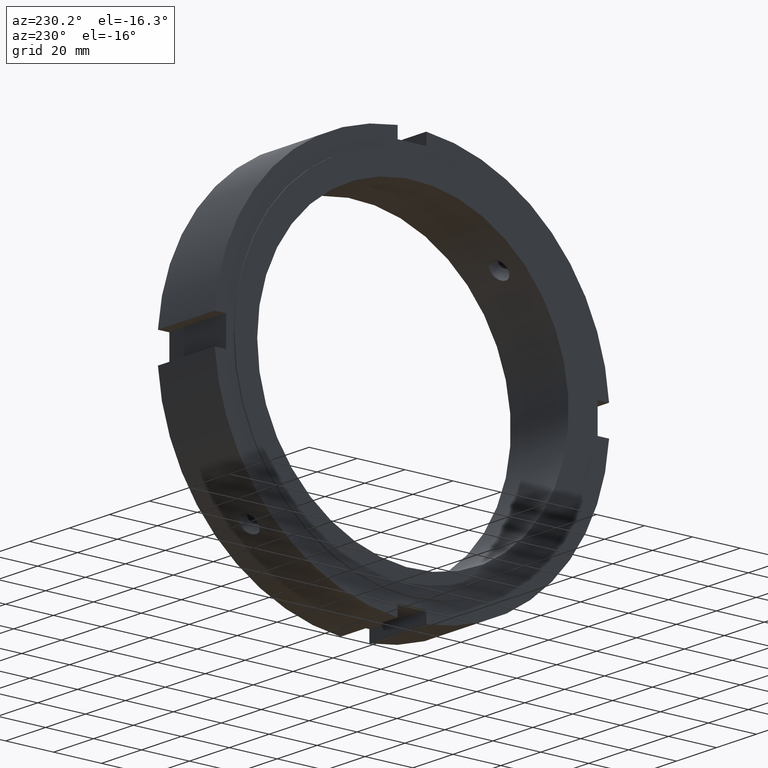
[diagram: clean part render]
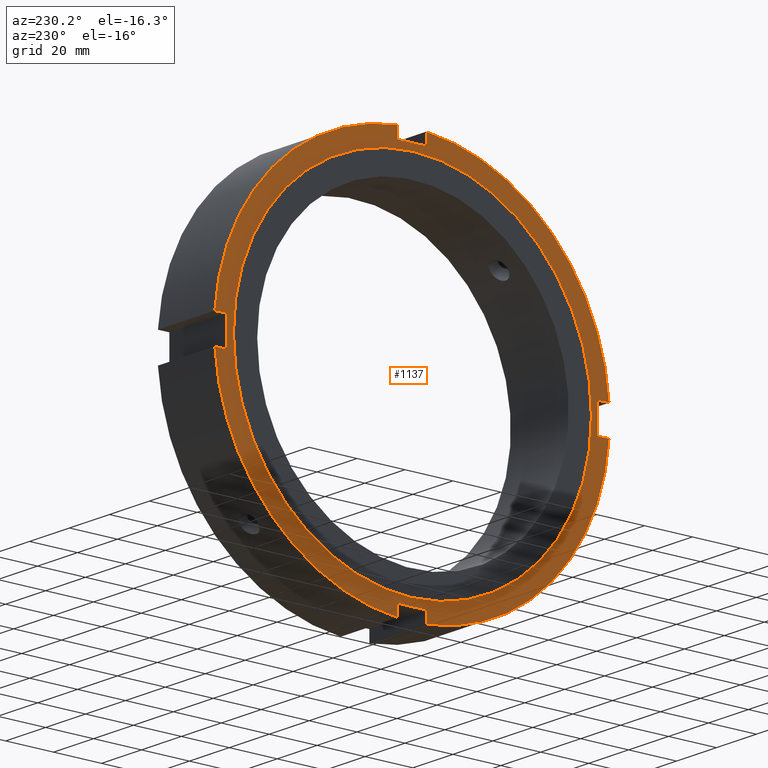
[diagram: same view with one face highlighted and labeled with its STEP entity id]
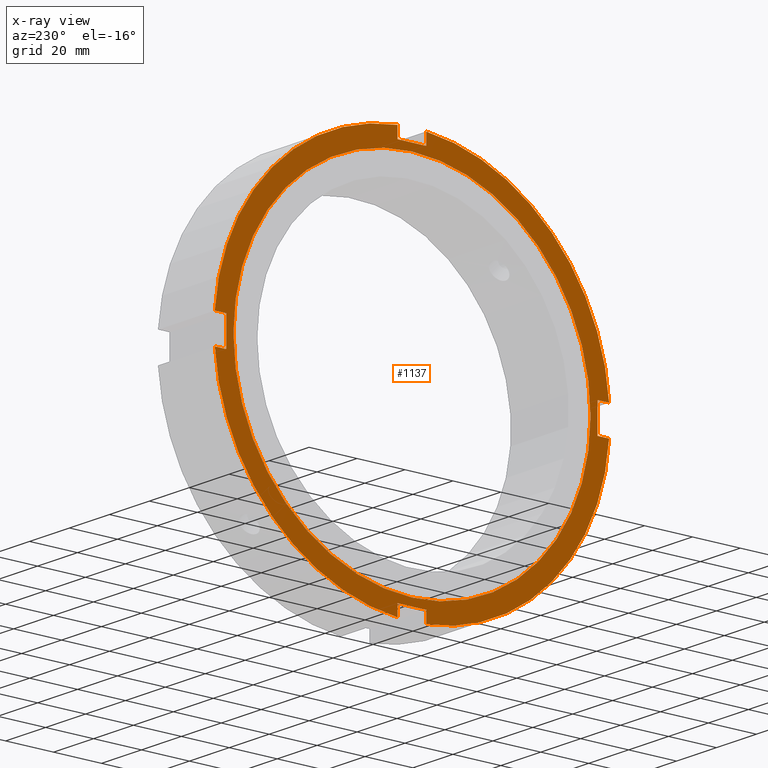
[diagram: x-ray of the same camera — body ghosted, the highlighted face saturated]
A machine part, auxiliary view. The second image highlights one B-rep face of the part: STEP entity #1137.
The next image is the same camera in x-ray: the body ghosted, the highlighted face saturated — about 0% of this face is hidden behind the body in this view.
In plain terms, the highlighted planar face has unit normal (-1, 0, 0).
Its self-contained STEP definition (entity closure, byte-faithful):
#517=CARTESIAN_POINT('',(0.49999999999998,-6.000000000000011,-77.5));
#518=VERTEX_POINT('',#517);
#519=CARTESIAN_POINT('',(0.499999999999976,-6.000000000000012,-82.281528911414853));
#520=VERTEX_POINT('',#519);
#521=CARTESIAN_POINT('',(0.499999999999978,-6.000000000000012,-77.5));
#522=DIRECTION('',(0.0,0.0,-1.0));
#523=VECTOR('',#522,4.781528911414853);
#524=LINE('',#521,#523);
#525=EDGE_CURVE('',#518,#520,#524,.T.);
#557=CARTESIAN_POINT('',(0.499999999999976,5.999999999999981,-82.281528911414853));
#558=VERTEX_POINT('',#557);
#559=CARTESIAN_POINT('',(0.49999999999998,5.999999999999982,-77.5));
#560=VERTEX_POINT('',#559);
#561=CARTESIAN_POINT('',(0.499999999999978,5.999999999999981,-82.281528911414853));
#562=DIRECTION('',(0.0,0.0,1.0));
#563=VECTOR('',#562,4.781528911414853);
#564=LINE('',#561,#563);
#565=EDGE_CURVE('',#558,#560,#564,.T.);
#597=CARTESIAN_POINT('',(0.499999999999978,5.999999999999986,-77.5));
#598=DIRECTION('',(0.0,-1.0,0.0));
#599=VECTOR('',#598,12.0);
#600=LINE('',#597,#599);
#601=EDGE_CURVE('',#560,#518,#600,.T.);
#619=CARTESIAN_POINT('',(0.49999999999998,-77.5,6.000000000000005));
#620=VERTEX_POINT('',#619);
#621=CARTESIAN_POINT('',(0.499999999999976,-82.281528911414853,6.000000000000007));
#622=VERTEX_POINT('',#621);
#623=CARTESIAN_POINT('',(0.499999999999978,-77.5,6.000000000000006));
#624=DIRECTION('',(0.0,-1.0,0.0));
#625=VECTOR('',#624,4.781528911414867);
#626=LINE('',#623,#625);
#627=EDGE_CURVE('',#620,#622,#626,.T.);
#659=CARTESIAN_POINT('',(0.499999999999976,-82.281528911414853,-5.999999999999986));
#660=VERTEX_POINT('',#659);
#661=CARTESIAN_POINT('',(0.49999999999998,-77.5,-5.999999999999988));
#662=VERTEX_POINT('',#661);
#663=CARTESIAN_POINT('',(0.499999999999978,-82.281528911414853,-5.999999999999986));
#664=DIRECTION('',(0.0,1.0,0.0));
#665=VECTOR('',#664,4.781528911414853);
#666=LINE('',#663,#665);
#667=EDGE_CURVE('',#660,#662,#666,.T.);
#699=CARTESIAN_POINT('',(0.499999999999978,-77.5,-5.999999999999988));
#700=DIRECTION('',(0.0,0.0,1.0));
#701=VECTOR('',#700,11.999999999999993);
#702=LINE('',#699,#701);
#703=EDGE_CURVE('',#662,#620,#702,.T.);
#721=CARTESIAN_POINT('',(0.49999999999998,6.000000000000001,77.5));
#722=VERTEX_POINT('',#721);
#723=CARTESIAN_POINT('',(0.499999999999976,6.000000000000002,82.281528911414853));
#724=VERTEX_POINT('',#723);
#725=CARTESIAN_POINT('',(0.499999999999978,5.999999999999995,77.5));
#726=DIRECTION('',(0.0,0.0,1.0));
#727=VECTOR('',#726,4.781528911414853);
#728=LINE('',#725,#727);
#729=EDGE_CURVE('',#722,#724,#728,.T.);
#761=CARTESIAN_POINT('',(0.499999999999976,-5.999999999999991,82.281528911414853));
#762=VERTEX_POINT('',#761);
#763=CARTESIAN_POINT('',(0.49999999999998,-5.999999999999992,77.5));
#764=VERTEX_POINT('',#763);
#765=CARTESIAN_POINT('',(0.499999999999978,-5.999999999999989,82.281528911414853));
#766=DIRECTION('',(0.0,0.0,-1.0));
#767=VECTOR('',#766,4.781528911414853);
#768=LINE('',#765,#767);
#769=EDGE_CURVE('',#762,#764,#768,.T.);
#801=CARTESIAN_POINT('',(0.499999999999978,-5.999999999999993,77.5));
#802=DIRECTION('',(0.0,1.0,0.0));
#803=VECTOR('',#802,11.999999999999996);
#804=LINE('',#801,#803);
#805=EDGE_CURVE('',#764,#722,#804,.T.);
#833=CARTESIAN_POINT('',(0.499999999999976,82.281528911414853,5.999999999999996));
#834=VERTEX_POINT('',#833);
#841=CARTESIAN_POINT('',(0.499999999999976,0.0,0.0));
#842=DIRECTION('',(1.0,0.0,0.0));
#843=DIRECTION('',(0.0,1.0,0.0));
#844=AXIS2_PLACEMENT_3D('',#841,#842,#843);
#845=CIRCLE('',#844,82.5);
#846=EDGE_CURVE('',#834,#724,#845,.T.);
#865=CARTESIAN_POINT('',(0.499999999999976,0.0,0.0));
#866=DIRECTION('',(1.0,0.0,0.0));
#867=DIRECTION('',(0.0,1.0,0.0));
#868=AXIS2_PLACEMENT_3D('',#865,#866,#867);
#869=CIRCLE('',#868,82.5);
#870=EDGE_CURVE('',#762,#622,#869,.T.);
#884=CARTESIAN_POINT('',(0.499999999999976,82.281528911414853,-5.999999999999996));
#885=VERTEX_POINT('',#884);
#886=CARTESIAN_POINT('',(0.499999999999976,0.0,0.0));
#887=DIRECTION('',(1.0,0.0,0.0));
#888=DIRECTION('',(0.0,1.0,0.0));
#889=AXIS2_PLACEMENT_3D('',#886,#887,#888);
#890=CIRCLE('',#889,82.5);
#891=EDGE_CURVE('',#558,#885,#890,.T.);
#928=CARTESIAN_POINT('',(0.499999999999976,0.0,0.0));
#929=DIRECTION('',(1.0,0.0,0.0));
#930=DIRECTION('',(0.0,1.0,0.0));
#931=AXIS2_PLACEMENT_3D('',#928,#929,#930);
#932=CIRCLE('',#931,82.5);
#933=EDGE_CURVE('',#660,#520,#932,.T.);
#1003=CARTESIAN_POINT('',(0.49999999999998,77.5,-5.999999999999996));
#1004=VERTEX_POINT('',#1003);
#1005=CARTESIAN_POINT('',(0.499999999999978,77.5,-5.999999999999996));
#1006=DIRECTION('',(0.0,1.0,0.0));
#1007=VECTOR('',#1006,4.781528911414853);
#1008=LINE('',#1005,#1007);
#1009=EDGE_CURVE('',#1004,#885,#1008,.T.);
#1027=CARTESIAN_POINT('',(0.49999999999998,77.5,5.999999999999996));
#1028=VERTEX_POINT('',#1027);
#1029=CARTESIAN_POINT('',(0.499999999999978,82.281528911414853,5.999999999999996));
#1030=DIRECTION('',(0.0,-1.0,0.0));
#1031=VECTOR('',#1030,4.781528911414853);
#1032=LINE('',#1029,#1031);
#1033=EDGE_CURVE('',#834,#1028,#1032,.T.);
#1051=CARTESIAN_POINT('',(0.499999999999978,77.5,5.999999999999996));
#1052=DIRECTION('',(0.0,0.0,-1.0));
#1053=VECTOR('',#1052,11.999999999999993);
#1054=LINE('',#1051,#1053);
#1055=EDGE_CURVE('',#1028,#1004,#1054,.T.);
#1096=CARTESIAN_POINT('',(0.49999999999998,74.5,0.0));
#1097=VERTEX_POINT('',#1096);
#1098=CARTESIAN_POINT('',(0.49999999999998,0.0,0.0));
#1099=DIRECTION('',(1.0,0.0,0.0));
#1100=DIRECTION('',(0.0,1.0,0.0));
#1101=AXIS2_PLACEMENT_3D('',#1098,#1099,#1100);
#1102=CIRCLE('',#1101,74.5);
#1103=EDGE_CURVE('',#1097,#1097,#1102,.T.);
#1111=CARTESIAN_POINT('',(0.499999999999978,78.5,0.0));
#1112=DIRECTION('',(-1.0,0.0,0.0));
#1113=DIRECTION('',(0.0,0.0,1.0));
#1114=AXIS2_PLACEMENT_3D('',#1111,#1112,#1113);
#1115=PLANE('',#1114);
#1116=ORIENTED_EDGE('',*,*,#525,.T.);
#1117=ORIENTED_EDGE('',*,*,#933,.F.);
#1118=ORIENTED_EDGE('',*,*,#667,.T.);
#1119=ORIENTED_EDGE('',*,*,#703,.T.);
#1120=ORIENTED_EDGE('',*,*,#627,.T.);
#1121=ORIENTED_EDGE('',*,*,#870,.F.);
#1122=ORIENTED_EDGE('',*,*,#769,.T.);
#1123=ORIENTED_EDGE('',*,*,#805,.T.);
#1124=ORIENTED_EDGE('',*,*,#729,.T.);
#1125=ORIENTED_EDGE('',*,*,#846,.F.);
#1126=ORIENTED_EDGE('',*,*,#1033,.T.);
#1127=ORIENTED_EDGE('',*,*,#1055,.T.);
#1128=ORIENTED_EDGE('',*,*,#1009,.T.);
#1129=ORIENTED_EDGE('',*,*,#891,.F.);
#1130=ORIENTED_EDGE('',*,*,#565,.T.);
#1131=ORIENTED_EDGE('',*,*,#601,.T.);
#1132=EDGE_LOOP('',(#1116,#1117,#1118,#1119,#1120,#1121,#1122,#1123,#1124,#1125,#1126,#1127,#1128,#1129,#1130,#1131));
#1133=FACE_OUTER_BOUND('',#1132,.T.);
#1134=ORIENTED_EDGE('',*,*,#1103,.T.);
#1135=EDGE_LOOP('',(#1134));
#1136=FACE_BOUND('',#1135,.T.);
#1137=ADVANCED_FACE('',(#1133,#1136),#1115,.T.);